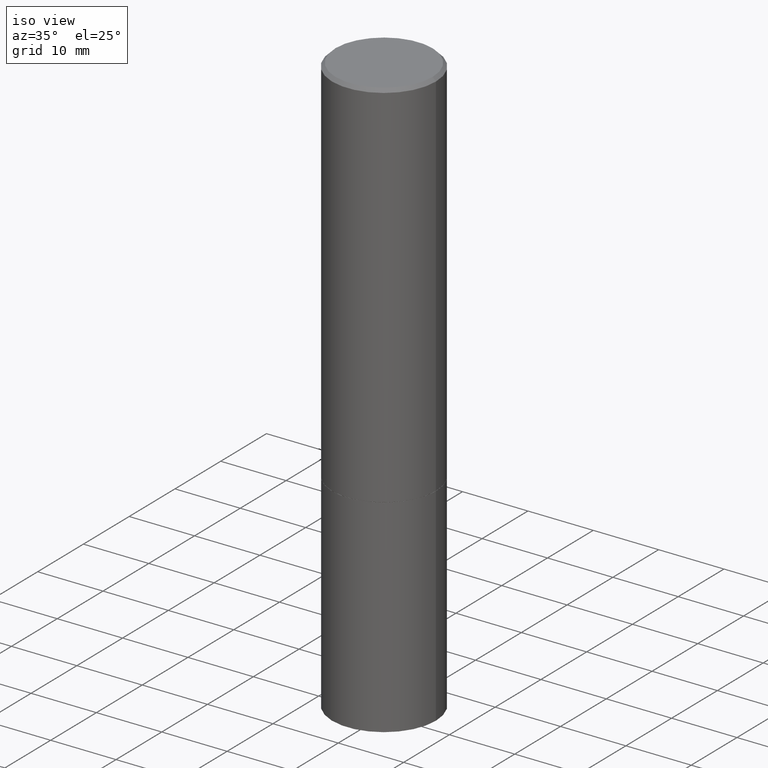
[diagram: clean part render]
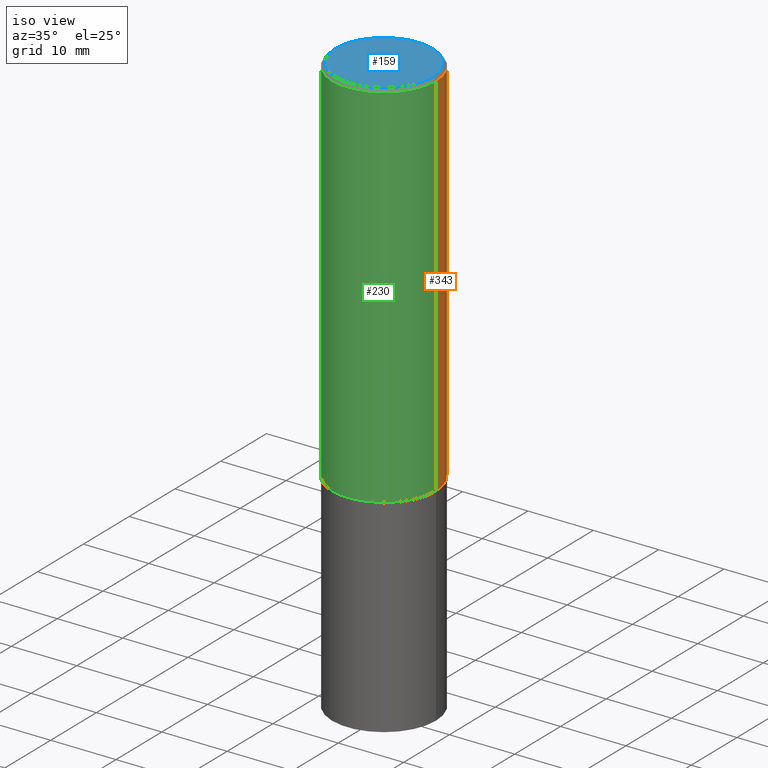
[diagram: same view with three faces highlighted in distinct colors, each labeled with its STEP entity id]
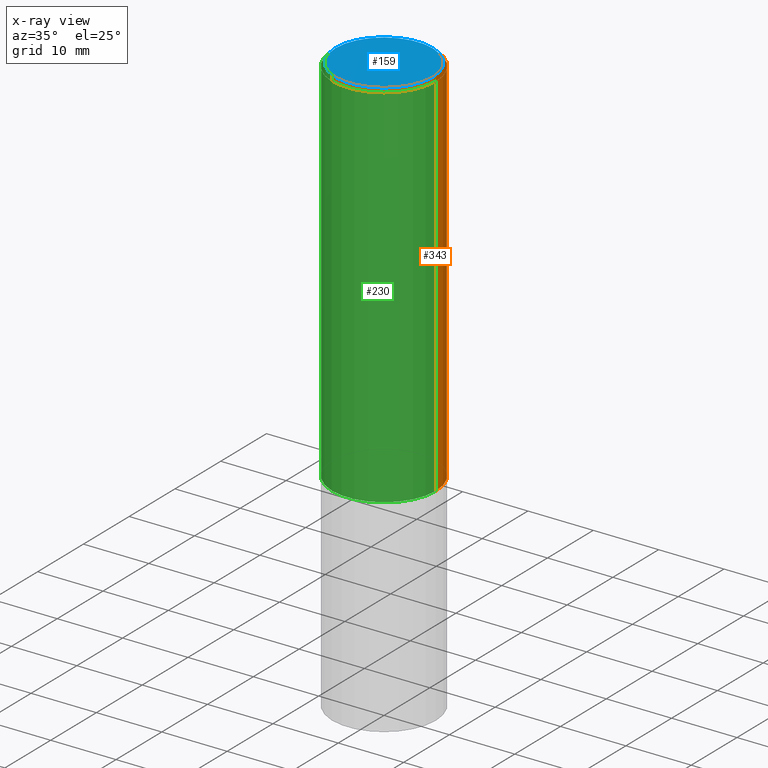
[diagram: x-ray of the same camera — body ghosted, the three highlighted faces saturated]
A machine part, iso view with three faces highlighted in distinct colors.
The next image is the same camera in x-ray (body ghosted, the three faces saturated) — at least one of them is partly hidden behind the body in this view.
Their STEP definitions:

[orange] entity #343 — the highlighted cylindrical surface (partial cylindrical patch) has radius 7.9375 mm, axis along (-0, 0, 1).
#12 = CARTESIAN_POINT ( 'NONE',  ( 4.890937612370292426E-31, -6.982962677686317493E-17, -0.02000000000000007674 ) ) ;
#33 = ORIENTED_EDGE ( 'NONE', *, *, #310, .T. ) ;
#41 = DIRECTION ( 'NONE',  ( -2.445468806185136597E-29, 3.491481338843145583E-15, 1.000000000000000000 ) ) ;
#55 = AXIS2_PLACEMENT_3D ( 'NONE', #184, #41, #288 ) ;
#58 = EDGE_LOOP ( 'NONE', ( #33, #59, #206, #102 ) ) ;
#59 = ORIENTED_EDGE ( 'NONE', *, *, #359, .T. ) ;
#63 = CARTESIAN_POINT ( 'NONE',  ( 0.3125000000000000000, -1.003451736783519063E-14, -2.248999999999999666 ) ) ;
#69 = CYLINDRICAL_SURFACE ( 'NONE', #256, 0.3124999999999999445 ) ;
#81 = VERTEX_POINT ( 'NONE', #248 ) ;
#99 = CARTESIAN_POINT ( 'NONE',  ( -0.3124999999999998890, 2.112346210000094260E-15, -0.02000000000000007674 ) ) ;
#102 = ORIENTED_EDGE ( 'NONE', *, *, #323, .F. ) ;
#153 = CARTESIAN_POINT ( 'NONE',  ( -0.3125000000000000000, -1.740639529667234514E-15, -2.248999999999999666 ) ) ;
#154 = LINE ( 'NONE', #347, #379 ) ;
#175 = VERTEX_POINT ( 'NONE', #63 ) ;
#184 = CARTESIAN_POINT ( 'NONE',  ( 5.499859345110371740E-29, -7.852341531058233864E-15, -2.248999999999999666 ) ) ;
#206 = ORIENTED_EDGE ( 'NONE', *, *, #245, .F. ) ;
#216 = DIRECTION ( 'NONE',  ( 1.000000000000000000, -6.982962677686266711E-15, 4.876176775795936353E-29 ) ) ;
#245 = EDGE_CURVE ( 'NONE', #81, #326, #289, .T. ) ;
#248 = CARTESIAN_POINT ( 'NONE',  ( 0.3124999999999998890, -2.213735251080466123E-15, -0.02000000000000007674 ) ) ;
#251 = DIRECTION ( 'NONE',  ( -2.445468806185136597E-29, 3.491481338843145583E-15, 1.000000000000000000 ) ) ;
#256 = AXIS2_PLACEMENT_3D ( 'NONE', #382, #317, #216 ) ;
#257 = DIRECTION ( 'NONE',  ( -2.445468806185136877E-29, 3.491481338843145188E-15, 1.000000000000000000 ) ) ;
#287 = LINE ( 'NONE', #320, #358 ) ;
#288 = DIRECTION ( 'NONE',  ( 1.000000000000000000, -6.982962677686265133E-15, 0.000000000000000000 ) ) ;
#289 = CIRCLE ( 'NONE', #337, 0.3124999999999998890 ) ;
#306 = CIRCLE ( 'NONE', #55, 0.3125000000000000000 ) ;
#310 = EDGE_CURVE ( 'NONE', #175, #365, #306, .T. ) ;
#317 = DIRECTION ( 'NONE',  ( -2.445468806185136597E-29, 3.491481338843145583E-15, 1.000000000000000000 ) ) ;
#320 = CARTESIAN_POINT ( 'NONE',  ( -0.3124999999999999445, 2.220446049250312686E-15, -1.537167215704657671E-29 ) ) ;
#322 = DIRECTION ( 'NONE',  ( 1.000000000000000000, -6.982962677686266711E-15, 0.000000000000000000 ) ) ;
#323 = EDGE_CURVE ( 'NONE', #175, #81, #154, .T. ) ;
#326 = VERTEX_POINT ( 'NONE', #99 ) ;
#337 = AXIS2_PLACEMENT_3D ( 'NONE', #12, #251, #322 ) ;
#343 = ADVANCED_FACE ( 'NONE', ( #348 ), #69, .T. ) ;
#347 = CARTESIAN_POINT ( 'NONE',  ( 0.3124999999999999445, -2.182175836776957953E-15, 1.523805242436229795E-29 ) ) ;
#348 = FACE_OUTER_BOUND ( 'NONE', #58, .T. ) ;
#355 = DIRECTION ( 'NONE',  ( -2.445468806185136877E-29, 3.491481338843145188E-15, 1.000000000000000000 ) ) ;
#358 = VECTOR ( 'NONE', #355, 39.37007874015748143 ) ;
#359 = EDGE_CURVE ( 'NONE', #365, #326, #287, .T. ) ;
#365 = VERTEX_POINT ( 'NONE', #153 ) ;
#379 = VECTOR ( 'NONE', #257, 39.37007874015748143 ) ;
#382 = CARTESIAN_POINT ( 'NONE',  ( 0.000000000000000000, 0.000000000000000000, 0.000000000000000000 ) ) ;

[blue] entity #159 — the highlighted planar face has unit normal (0, -0, -1).
#4 = ORIENTED_EDGE ( 'NONE', *, *, #162, .T. ) ;
#7 = DIRECTION ( 'NONE',  ( -2.445468806185136597E-29, 3.491481338843145583E-15, 1.000000000000000000 ) ) ;
#39 = FACE_OUTER_BOUND ( 'NONE', #87, .T. ) ;
#87 = EDGE_LOOP ( 'NONE', ( #328, #4 ) ) ;
#94 = DIRECTION ( 'NONE',  ( -1.000000000000000000, 6.982962677686265922E-15, -4.876176775795935793E-29 ) ) ;
#115 = CIRCLE ( 'NONE', #247, 0.2924999999999998712 ) ;
#144 = CARTESIAN_POINT ( 'NONE',  ( 2.042516583223231751E-15, 0.2924999999999998712, -1.021258291611619622E-15 ) ) ;
#149 = PLANE ( 'NONE',  #231 ) ;
#159 = ADVANCED_FACE ( 'NONE', ( #39 ), #149, .F. ) ;
#162 = EDGE_CURVE ( 'NONE', #249, #269, #115, .T. ) ;
#179 = DIRECTION ( 'NONE',  ( 1.000000000000000000, -6.982962677686266711E-15, 4.876176775795935232E-29 ) ) ;
#185 = EDGE_CURVE ( 'NONE', #269, #249, #201, .T. ) ;
#189 = AXIS2_PLACEMENT_3D ( 'NONE', #209, #7, #335 ) ;
#201 = CIRCLE ( 'NONE', #189, 0.2924999999999998712 ) ;
#209 = CARTESIAN_POINT ( 'NONE',  ( 0.000000000000000000, 0.000000000000000000, 0.000000000000000000 ) ) ;
#231 = AXIS2_PLACEMENT_3D ( 'NONE', #144, #339, #94 ) ;
#244 = DIRECTION ( 'NONE',  ( -2.445468806185136597E-29, 3.491481338843145583E-15, 1.000000000000000000 ) ) ;
#247 = AXIS2_PLACEMENT_3D ( 'NONE', #308, #244, #179 ) ;
#249 = VERTEX_POINT ( 'NONE', #376 ) ;
#269 = VERTEX_POINT ( 'NONE', #380 ) ;
#308 = CARTESIAN_POINT ( 'NONE',  ( 0.000000000000000000, 0.000000000000000000, 0.000000000000000000 ) ) ;
#328 = ORIENTED_EDGE ( 'NONE', *, *, #185, .T. ) ;
#335 = DIRECTION ( 'NONE',  ( 1.000000000000000000, -6.982962677686266711E-15, 4.876176775795935232E-29 ) ) ;
#339 = DIRECTION ( 'NONE',  ( 2.438088387897960049E-29, -3.491481338843145188E-15, -1.000000000000000000 ) ) ;
#376 = CARTESIAN_POINT ( 'NONE',  ( 0.2924999999999998712, -2.110215457714318748E-15, 1.452077414963941102E-29 ) ) ;
#380 = CARTESIAN_POINT ( 'NONE',  ( -0.2924999999999998712, 2.077431396611663005E-15, -1.440630921208799661E-29 ) ) ;

[green] entity #230 — the highlighted cylindrical surface (partial cylindrical patch) has radius 7.9375 mm, axis along (-0, 0, 1).
#36 = DIRECTION ( 'NONE',  ( -2.445468806185136597E-29, 3.491481338843145583E-15, 1.000000000000000000 ) ) ;
#63 = CARTESIAN_POINT ( 'NONE',  ( 0.3125000000000000000, -1.003451736783519063E-14, -2.248999999999999666 ) ) ;
#64 = CARTESIAN_POINT ( 'NONE',  ( 5.499859345110371740E-29, -7.852341531058233864E-15, -2.248999999999999666 ) ) ;
#72 = EDGE_LOOP ( 'NONE', ( #219, #145, #290, #137 ) ) ;
#81 = VERTEX_POINT ( 'NONE', #248 ) ;
#91 = DIRECTION ( 'NONE',  ( 1.000000000000000000, -6.982962677686266711E-15, 0.000000000000000000 ) ) ;
#92 = CARTESIAN_POINT ( 'NONE',  ( 4.890937612370292426E-31, -6.982962677686317493E-17, -0.02000000000000007674 ) ) ;
#99 = CARTESIAN_POINT ( 'NONE',  ( -0.3124999999999998890, 2.112346210000094260E-15, -0.02000000000000007674 ) ) ;
#118 = FACE_OUTER_BOUND ( 'NONE', #72, .T. ) ;
#120 = EDGE_CURVE ( 'NONE', #326, #81, #311, .T. ) ;
#137 = ORIENTED_EDGE ( 'NONE', *, *, #120, .F. ) ;
#145 = ORIENTED_EDGE ( 'NONE', *, *, #194, .T. ) ;
#153 = CARTESIAN_POINT ( 'NONE',  ( -0.3125000000000000000, -1.740639529667234514E-15, -2.248999999999999666 ) ) ;
#154 = LINE ( 'NONE', #347, #379 ) ;
#175 = VERTEX_POINT ( 'NONE', #63 ) ;
#183 = CIRCLE ( 'NONE', #283, 0.3125000000000000000 ) ;
#194 = EDGE_CURVE ( 'NONE', #365, #175, #183, .T. ) ;
#208 = DIRECTION ( 'NONE',  ( 1.000000000000000000, -6.982962677686265133E-15, 0.000000000000000000 ) ) ;
#219 = ORIENTED_EDGE ( 'NONE', *, *, #359, .F. ) ;
#223 = AXIS2_PLACEMENT_3D ( 'NONE', #92, #373, #91 ) ;
#230 = ADVANCED_FACE ( 'NONE', ( #118 ), #312, .T. ) ;
#241 = DIRECTION ( 'NONE',  ( 1.000000000000000000, -6.982962677686266711E-15, 4.876176775795936353E-29 ) ) ;
#248 = CARTESIAN_POINT ( 'NONE',  ( 0.3124999999999998890, -2.213735251080466123E-15, -0.02000000000000007674 ) ) ;
#257 = DIRECTION ( 'NONE',  ( -2.445468806185136877E-29, 3.491481338843145188E-15, 1.000000000000000000 ) ) ;
#276 = CARTESIAN_POINT ( 'NONE',  ( 0.000000000000000000, 0.000000000000000000, 0.000000000000000000 ) ) ;
#283 = AXIS2_PLACEMENT_3D ( 'NONE', #64, #345, #208 ) ;
#287 = LINE ( 'NONE', #320, #358 ) ;
#290 = ORIENTED_EDGE ( 'NONE', *, *, #323, .T. ) ;
#311 = CIRCLE ( 'NONE', #223, 0.3124999999999998890 ) ;
#312 = CYLINDRICAL_SURFACE ( 'NONE', #349, 0.3124999999999999445 ) ;
#320 = CARTESIAN_POINT ( 'NONE',  ( -0.3124999999999999445, 2.220446049250312686E-15, -1.537167215704657671E-29 ) ) ;
#323 = EDGE_CURVE ( 'NONE', #175, #81, #154, .T. ) ;
#326 = VERTEX_POINT ( 'NONE', #99 ) ;
#345 = DIRECTION ( 'NONE',  ( -2.445468806185136597E-29, 3.491481338843145583E-15, 1.000000000000000000 ) ) ;
#347 = CARTESIAN_POINT ( 'NONE',  ( 0.3124999999999999445, -2.182175836776957953E-15, 1.523805242436229795E-29 ) ) ;
#349 = AXIS2_PLACEMENT_3D ( 'NONE', #276, #36, #241 ) ;
#355 = DIRECTION ( 'NONE',  ( -2.445468806185136877E-29, 3.491481338843145188E-15, 1.000000000000000000 ) ) ;
#358 = VECTOR ( 'NONE', #355, 39.37007874015748143 ) ;
#359 = EDGE_CURVE ( 'NONE', #365, #326, #287, .T. ) ;
#365 = VERTEX_POINT ( 'NONE', #153 ) ;
#373 = DIRECTION ( 'NONE',  ( -2.445468806185136597E-29, 3.491481338843145583E-15, 1.000000000000000000 ) ) ;
#379 = VECTOR ( 'NONE', #257, 39.37007874015748143 ) ;